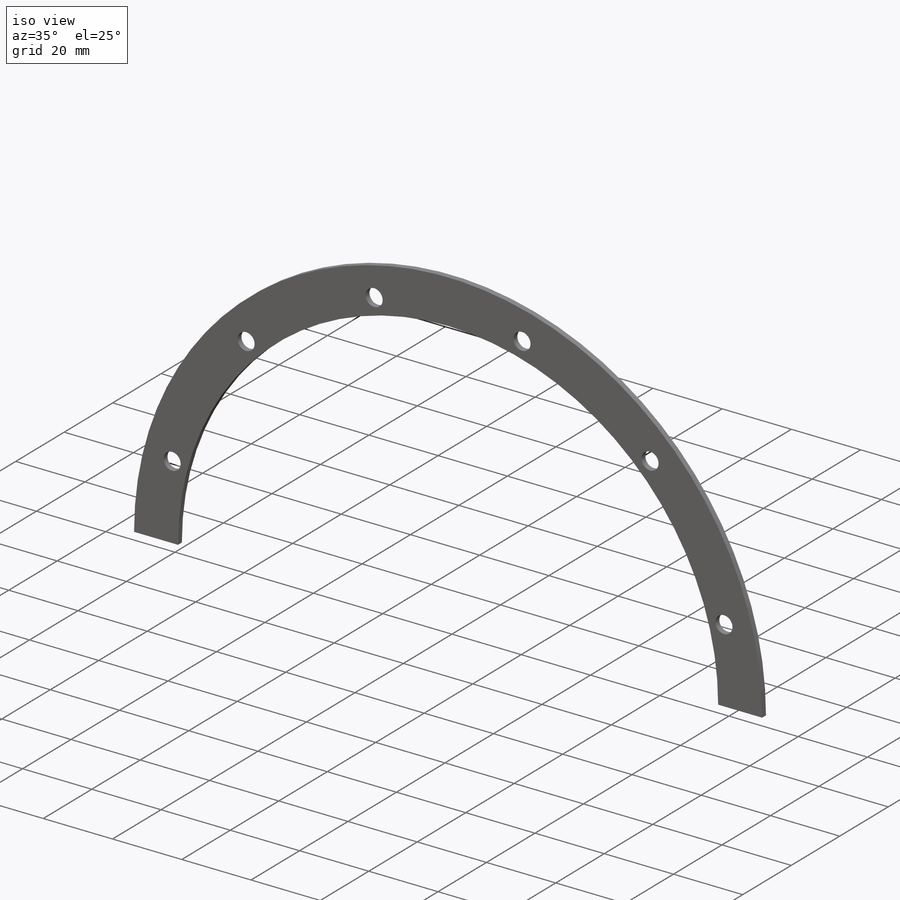
[diagram: iso view]
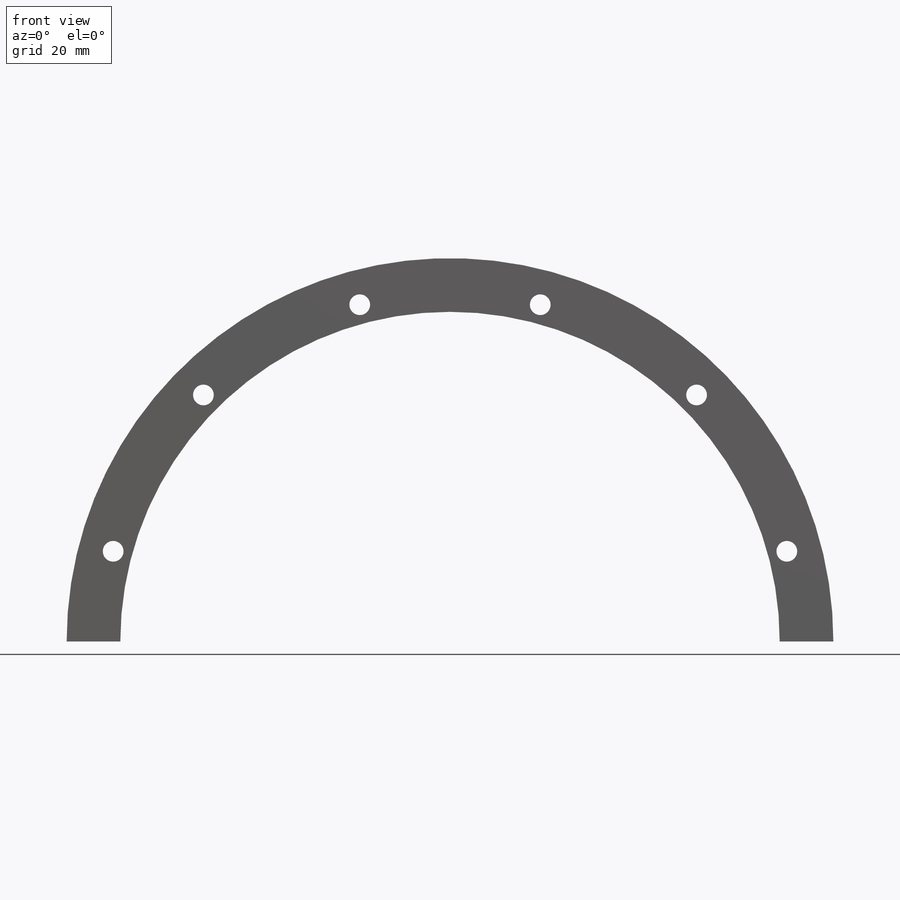
[diagram: front view]
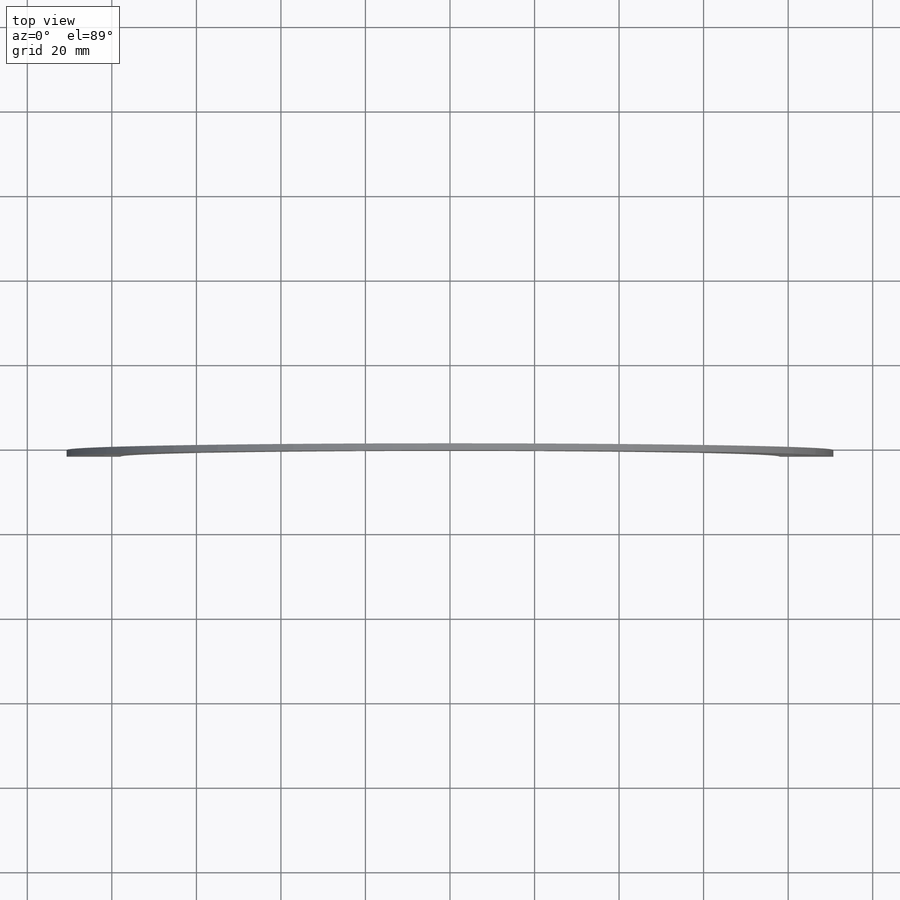
[diagram: top view]
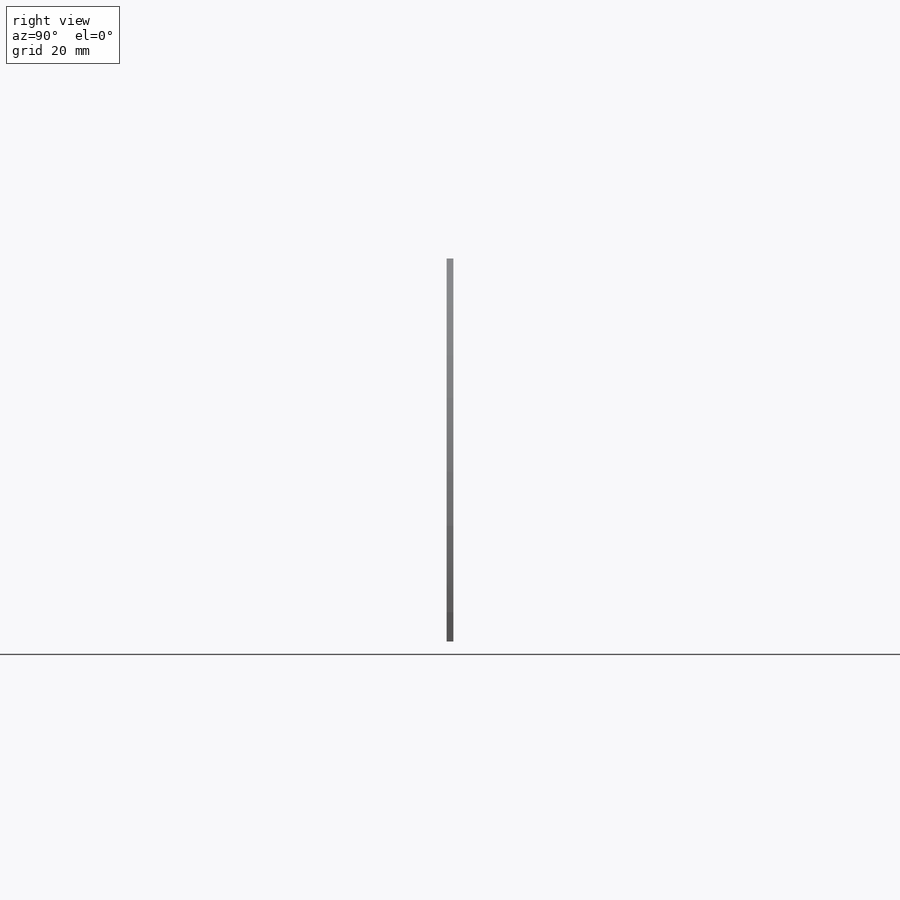
[diagram: right view]
SOLIDWORKS PART (.sldprt)
format: sldprt  version: not decoded by parser v0  size: 184,320 bytes
history: native  units: mm
features: sketch x3, material x1, extrude x1, hole x1, pattern_circular x1 (+11 scaffold rows collapsed)
feature tree (18):
  scaffold x11  (default folders/planes/origin — collapsed)
  material  "NEOPRENE"
  sketch  "Sketch1"  dims[D2=78.0mm D1=12.7mm]
  extrude  "Boss-Extrude1"  Depth=1.5875mm
  hole  "#8 Clearance Hole1"  Diameter=4.9149mm Depth=1.5875mm
  sketch  "Sketch3"  dims[c1.D1=82.5mm c1.D2=~14.784104mm c2.D2=15.0deg]
  sketch  "Sketch2"  dims[hole-wizard template sketch: 60 standard entries collapsed; hole parameters kept: c18.Thru Hole Depth=1.5875mm]
  pattern_circular  "CirPattern1"  Count=6 Angle=30deg
decode coverage: 6 of 6 modeling features carry decoded parameters
note: ~ marks probable driven/reference dimensions
note: suppression state not decoded; provenance and decode notes live in map.json
